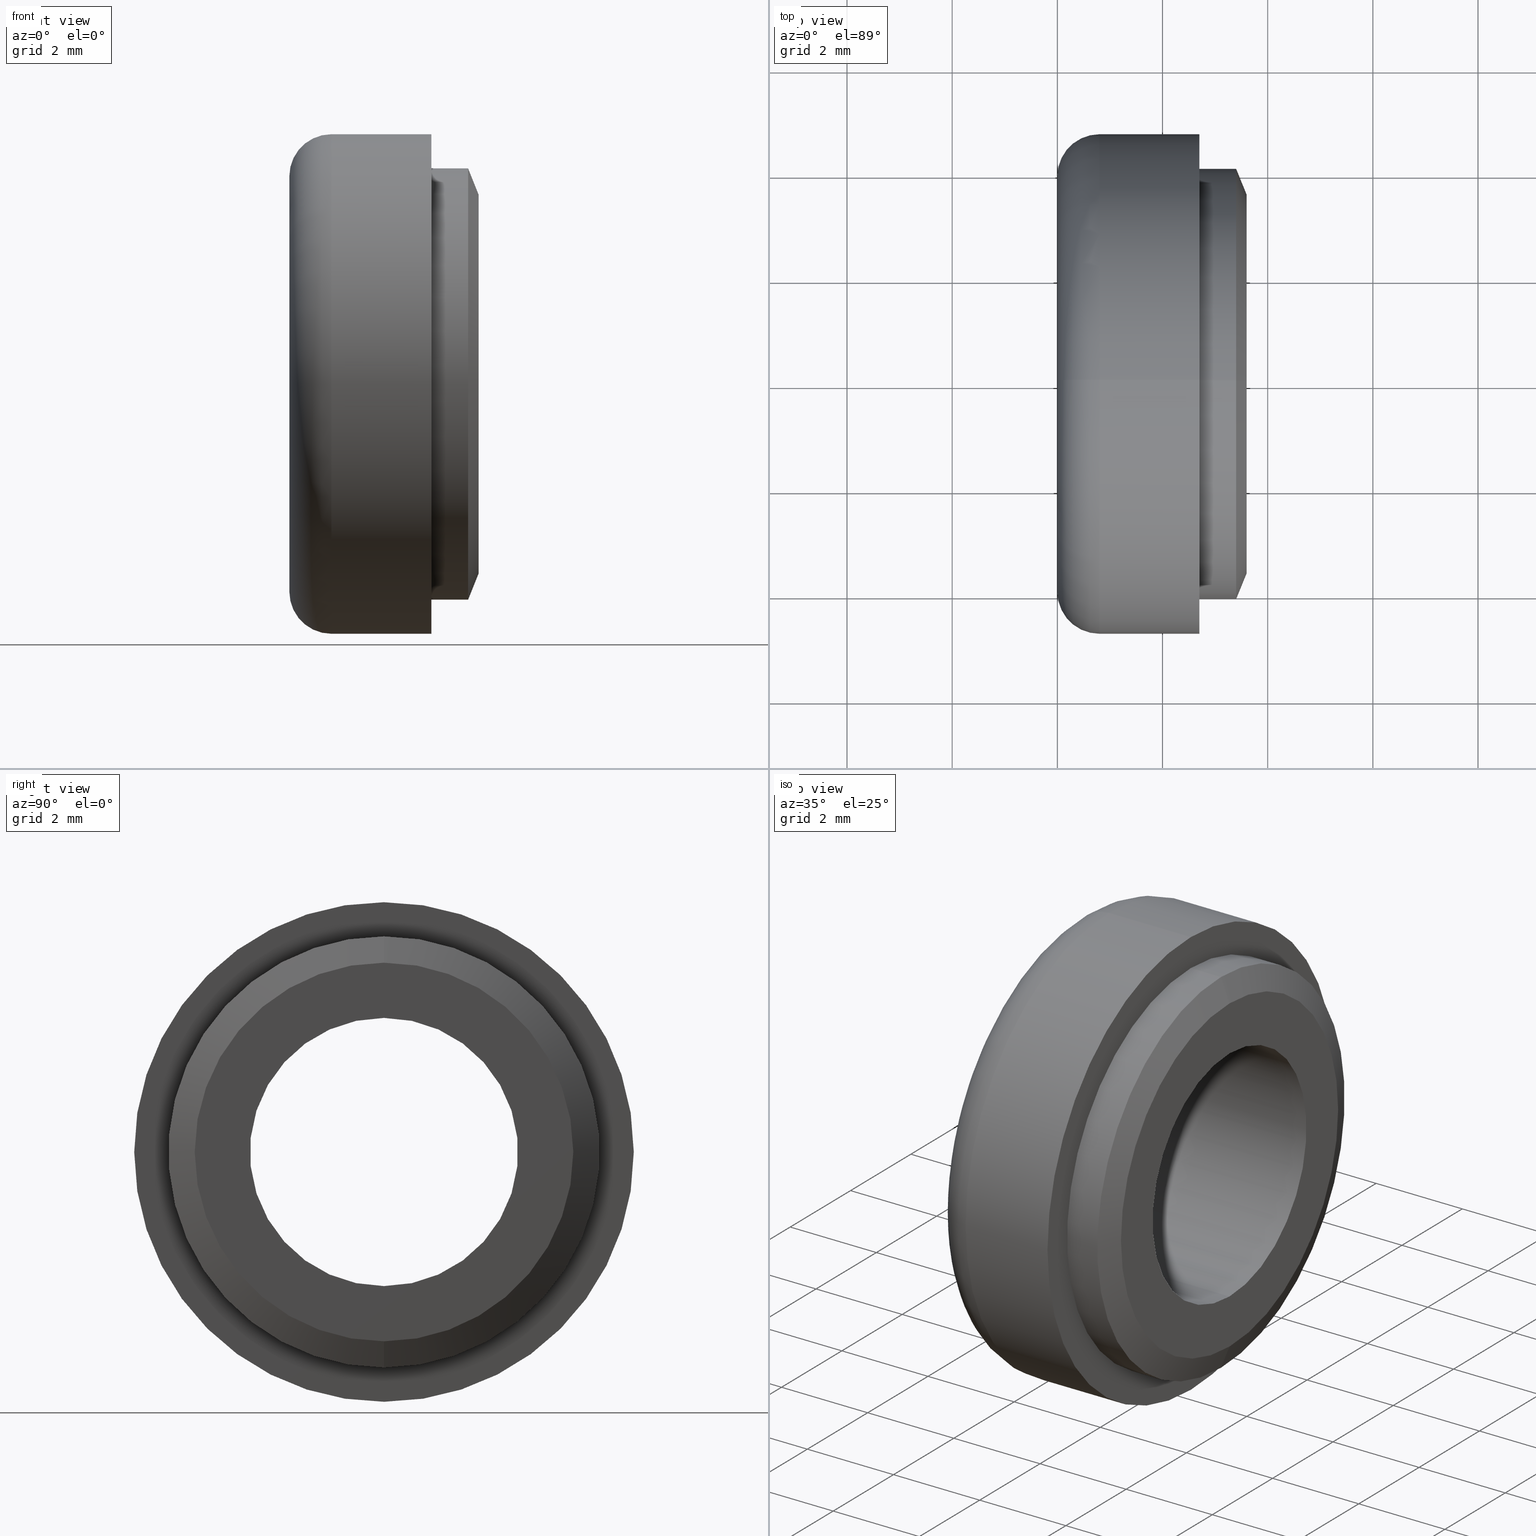
[diagram: canonical four-view strip — front | top / right | iso, engineering-drawing reading convention]
A machine part, canonical four-view strip (front | top / right | iso — engineering-drawing reading convention). The complete STEP part file that produces these views, byte-faithful:
ISO-10303-21;
HEADER;
FILE_DESCRIPTION (( 'STEP AP214' ),
    '1' );
FILE_NAME ('TL_421_M5.STEP',
    '2016-01-25T00:47:01',
    ( '' ),
    ( '' ),
    'SwSTEP 2.0',
    'SolidWorks 2015',
    '' );
FILE_SCHEMA (( 'AUTOMOTIVE_DESIGN' ));
ENDSEC;

DATA;
#1 = ORIENTED_EDGE ( 'NONE', *, *, #694, .T. ) ;
#2 = APPLICATION_CONTEXT ( 'automotive_design' ) ;
#3 = AXIS2_PLACEMENT_3D ( 'NONE', #18, #626, #240 ) ;
#4 =( LENGTH_UNIT ( ) NAMED_UNIT ( * ) SI_UNIT ( .MILLI., .METRE. ) );
#5 = CONTEXT_DEPENDENT_SHAPE_REPRESENTATION ( #448, #50 ) ;
#6 = CARTESIAN_POINT ( 'NONE',  ( 2.700000000000000200, 0.0000000000000000000, 0.0000000000000000000 ) ) ;
#7 = EDGE_CURVE ( 'NONE', #450, #698, #583, .T. ) ;
#8 = CIRCLE ( 'NONE', #39, 3.949999999999999700 ) ;
#9 =( LENGTH_UNIT ( ) NAMED_UNIT ( * ) SI_UNIT ( .MILLI., .METRE. ) );
#10 = PRODUCT_DEFINITION_SHAPE ( 'NONE', 'NONE',  #48 ) ;
#11 = CARTESIAN_POINT ( 'NONE',  ( -88.98999999999999500, 4.837354856632044100E-016, -3.949999999999999700 ) ) ;
#12 = SURFACE_STYLE_USAGE ( .BOTH. , #404 ) ;
#13 = CARTESIAN_POINT ( 'NONE',  ( 1.899999999999999000, 0.0000000000000000000, 0.0000000000000000000 ) ) ;
#14 = VERTEX_POINT ( 'NONE', #104 ) ;
#15 =( LENGTH_UNIT ( ) NAMED_UNIT ( * ) SI_UNIT ( .MILLI., .METRE. ) );
#16 = CYLINDRICAL_SURFACE ( 'NONE', #634, 2.549999999999999800 ) ;
#17 = AXIS2_PLACEMENT_3D ( 'NONE', #425, #479, #150 ) ;
#18 = CARTESIAN_POINT ( 'NONE',  ( 0.0000000000000000000, 0.0000000000000000000, 0.0000000000000000000 ) ) ;
#19 = PLANE ( 'NONE',  #430 ) ;
#20 = FACE_OUTER_BOUND ( 'NONE', #603, .T. ) ;
#21 = DIRECTION ( 'NONE',  ( -1.000000000000000000, -0.0000000000000000000, -0.0000000000000000000 ) ) ;
#22 = ADVANCED_FACE ( 'NONE', ( #546, #417 ), #670, .F. ) ;
#23 = VERTEX_POINT ( 'NONE', #721 ) ;
#24 = CARTESIAN_POINT ( 'NONE',  ( 2.799999999999997200, 0.0000000000000000000, 0.0000000000000000000 ) ) ;
#25 = ORIENTED_EDGE ( 'NONE', *, *, #127, .F. ) ;
#26 = CARTESIAN_POINT ( 'NONE',  ( 2.799999999999997200, 0.0000000000000000000, 0.0000000000000000000 ) ) ;
#27 = VECTOR ( 'NONE', #576, 1000.000000000000000 ) ;
#28 = CARTESIAN_POINT ( 'NONE',  ( 0.7999999999999999300, 0.0000000000000000000, 0.0000000000000000000 ) ) ;
#29 = SHAPE_DEFINITION_REPRESENTATION ( #10, #618 ) ;
#30 = CARTESIAN_POINT ( 'NONE',  ( 2.700000000000000200, 5.817072295949926400E-016, -4.750000000000000000 ) ) ;
#31 = CARTESIAN_POINT ( 'NONE',  ( 0.7999999999999999300, 0.0000000000000000000, 0.0000000000000000000 ) ) ;
#32 = ORIENTED_EDGE ( 'NONE', *, *, #506, .T. ) ;
#33 = ORIENTED_EDGE ( 'NONE', *, *, #525, .T. ) ;
#34 = ADVANCED_FACE ( 'NONE', ( #551 ), #710, .T. ) ;
#35 = CARTESIAN_POINT ( 'NONE',  ( 2.700000000000000200, 0.0000000000000000000, 4.750000000000000000 ) ) ;
#36 = AXIS2_PLACEMENT_3D ( 'NONE', #162, #274, #602 ) ;
#37 = TOROIDAL_SURFACE ( 'NONE', #553, 3.949999999999999700, 0.8000000000000000400 ) ;
#38 = EDGE_LOOP ( 'NONE', ( #198, #54 ) ) ;
#39 = AXIS2_PLACEMENT_3D ( 'NONE', #28, #419, #88 ) ;
#40 = CARTESIAN_POINT ( 'NONE',  ( 0.0000000000000000000, 0.0000000000000000000, 0.0000000000000000000 ) ) ;
#41 = DIRECTION ( 'NONE',  ( -1.000000000000000000, -0.0000000000000000000, -0.0000000000000000000 ) ) ;
#42 = AXIS2_PLACEMENT_3D ( 'NONE', #690, #67, #183 ) ;
#43 = DIRECTION ( 'NONE',  ( 0.0000000000000000000, 0.0000000000000000000, 1.000000000000000000 ) ) ;
#44 = ORIENTED_EDGE ( 'NONE', *, *, #503, .F. ) ;
#45 = ORIENTED_EDGE ( 'NONE', *, *, #444, .T. ) ;
#46 = FACE_OUTER_BOUND ( 'NONE', #677, .T. ) ;
#47 = DIRECTION ( 'NONE',  ( -1.000000000000000000, -0.0000000000000000000, -0.0000000000000000000 ) ) ;
#48 = PRODUCT_DEFINITION ( 'UNKNOWN', '', #278, #75 ) ;
#49 = CARTESIAN_POINT ( 'NONE',  ( 1.899999999999999000, 4.837354856632044100E-016, -3.949999999999999700 ) ) ;
#50 = PRODUCT_DEFINITION_SHAPE ( 'NONE', 'NONE',  #733 ) ;
#51 = EDGE_CURVE ( 'NONE', #211, #672, #277, .T. ) ;
#52 = EDGE_LOOP ( 'NONE', ( #32, #60 ) ) ;
#53 = VECTOR ( 'NONE', #302, 1000.000000000000000 ) ;
#54 = ORIENTED_EDGE ( 'NONE', *, *, #318, .T. ) ;
#55 = VECTOR ( 'NONE', #47, 1000.000000000000000 ) ;
#56 = CARTESIAN_POINT ( 'NONE',  ( -88.98999999999999500, 0.0000000000000000000, 0.0000000000000000000 ) ) ;
#57 = AXIS2_PLACEMENT_3D ( 'NONE', #94, #215, #534 ) ;
#58 = MANIFOLD_SOLID_BREP ( '��]1', #518 ) ;
#59 =( NAMED_UNIT ( * ) SI_UNIT ( $, .STERADIAN. ) SOLID_ANGLE_UNIT ( ) );
#60 = ORIENTED_EDGE ( 'NONE', *, *, #420, .T. ) ;
#61 = ORIENTED_EDGE ( 'NONE', *, *, #76, .T. ) ;
#62 = AXIS2_PLACEMENT_3D ( 'NONE', #640, #21, #305 ) ;
#63 = CIRCLE ( 'NONE', #496, 4.099999999999999600 ) ;
#64 = CARTESIAN_POINT ( 'NONE',  ( 2.700000000000000200, 0.0000000000000000000, 0.0000000000000000000 ) ) ;
#65 = APPLICATION_PROTOCOL_DEFINITION ( 'draft international standard', 'automotive_design', 1998, #121 ) ;
#66 = PRESENTATION_STYLE_ASSIGNMENT (( #12 ) ) ;
#67 = DIRECTION ( 'NONE',  ( 1.000000000000000000, 0.0000000000000000000, 0.0000000000000000000 ) ) ;
#68 = DIRECTION ( 'NONE',  ( 0.0000000000000000000, 0.0000000000000000000, 1.000000000000000000 ) ) ;
#69 = DIRECTION ( 'NONE',  ( -0.3713906763540910600, 0.0000000000000000000, 0.9284766908852645200 ) ) ;
#70 = ORIENTED_EDGE ( 'NONE', *, *, #420, .F. ) ;
#71 = SURFACE_SIDE_STYLE ('',( #117 ) ) ;
#72 = DIRECTION ( 'NONE',  ( 1.000000000000000000, 0.0000000000000000000, 0.0000000000000000000 ) ) ;
#73 = CIRCLE ( 'NONE', #727, 4.750000000000000000 ) ;
#74 = DIRECTION ( 'NONE',  ( 0.0000000000000000000, 0.0000000000000000000, 1.000000000000000000 ) ) ;
#75 = PRODUCT_DEFINITION_CONTEXT ( 'detailed design', #623, 'design' ) ;
#76 = EDGE_CURVE ( 'NONE', #467, #23, #490, .T. ) ;
#77 = VECTOR ( 'NONE', #217, 1000.000000000000000 ) ;
#78 = DIRECTION ( 'NONE',  ( 1.000000000000000000, 0.0000000000000000000, 0.0000000000000000000 ) ) ;
#79 = EDGE_CURVE ( 'NONE', #577, #216, #73, .T. ) ;
#80 = CARTESIAN_POINT ( 'NONE',  ( 0.7999999999999999300, 0.0000000000000000000, 3.949999999999999700 ) ) ;
#81 = AXIS2_PLACEMENT_3D ( 'NONE', #526, #207, #587 ) ;
#82 = DIRECTION ( 'NONE',  ( -1.000000000000000000, -0.0000000000000000000, -0.0000000000000000000 ) ) ;
#83 = DIRECTION ( 'NONE',  ( 0.0000000000000000000, 0.0000000000000000000, -1.000000000000000000 ) ) ;
#84 = EDGE_LOOP ( 'NONE', ( #268, #671, #112, #70 ) ) ;
#85 = FACE_OUTER_BOUND ( 'NONE', #442, .T. ) ;
#86 = DIRECTION ( 'NONE',  ( 0.0000000000000000000, 0.0000000000000000000, 1.000000000000000000 ) ) ;
#87 = ORIENTED_EDGE ( 'NONE', *, *, #7, .F. ) ;
#88 = DIRECTION ( 'NONE',  ( 0.0000000000000000000, 0.0000000000000000000, -1.000000000000000000 ) ) ;
#89 = PRODUCT_DEFINITION ( 'UNKNOWN', '', #351, #333 ) ;
#90 = EDGE_LOOP ( 'NONE', ( #681, #725, #87, #144 ) ) ;
#91 = EDGE_CURVE ( 'NONE', #23, #486, #655, .T. ) ;
#92 = CARTESIAN_POINT ( 'NONE',  ( 2.700000000000000200, 0.0000000000000000000, 0.0000000000000000000 ) ) ;
#93 = DIRECTION ( 'NONE',  ( 0.0000000000000000000, 0.0000000000000000000, -1.000000000000000000 ) ) ;
#94 = CARTESIAN_POINT ( 'NONE',  ( 2.799999999999997200, 0.0000000000000000000, 0.0000000000000000000 ) ) ;
#95 = DIRECTION ( 'NONE',  ( 0.0000000000000000000, 0.0000000000000000000, 1.000000000000000000 ) ) ;
#96 = FACE_OUTER_BOUND ( 'NONE', #380, .T. ) ;
#97 = AXIS2_PLACEMENT_3D ( 'NONE', #660, #499, #432 ) ;
#98 = VERTEX_POINT ( 'NONE', #325 ) ;
#99 = ORIENTED_EDGE ( 'NONE', *, *, #669, .F. ) ;
#100 = CARTESIAN_POINT ( 'NONE',  ( 0.7999999999999999300, 4.837354856632043100E-016, -3.949999999999999700 ) ) ;
#101 = CIRCLE ( 'NONE', #389, 2.600000000000000100 ) ;
#102 = CARTESIAN_POINT ( 'NONE',  ( 2.700000000000000200, 0.0000000000000000000, 0.0000000000000000000 ) ) ;
#103 = AXIS2_PLACEMENT_3D ( 'NONE', #252, #78, #406 ) ;
#104 = CARTESIAN_POINT ( 'NONE',  ( 0.7999999999999999300, 3.184081677783117700E-016, -2.600000000000000100 ) ) ;
#105 = ORIENTED_EDGE ( 'NONE', *, *, #200, .F. ) ;
#106 = ORIENTED_EDGE ( 'NONE', *, *, #588, .F. ) ;
#107 = ADVANCED_FACE ( 'NONE', ( #632, #214 ), #224, .F. ) ;
#108 = FACE_OUTER_BOUND ( 'NONE', #239, .T. ) ;
#109 = AXIS2_PLACEMENT_3D ( 'NONE', #26, #416, #86 ) ;
#110 = CARTESIAN_POINT ( 'NONE',  ( 0.7999999999999999300, 4.837354856632044100E-016, 3.949999999999999700 ) ) ;
#111 = AXIS2_PLACEMENT_3D ( 'NONE', #313, #708, #368 ) ;
#112 = ORIENTED_EDGE ( 'NONE', *, *, #127, .T. ) ;
#113 = ORIENTED_EDGE ( 'NONE', *, *, #51, .F. ) ;
#114 =( LENGTH_UNIT ( ) NAMED_UNIT ( * ) SI_UNIT ( .MILLI., .METRE. ) );
#115 = CIRCLE ( 'NONE', #253, 3.949999999999999700 ) ;
#116 = CARTESIAN_POINT ( 'NONE',  ( 0.7999999999999999300, 0.0000000000000000000, 0.0000000000000000000 ) ) ;
#117 = SURFACE_STYLE_FILL_AREA ( #456 ) ;
#118 = AXIS2_PLACEMENT_3D ( 'NONE', #363, #245, #565 ) ;
#119 = APPLICATION_PROTOCOL_DEFINITION ( 'draft international standard', 'automotive_design', 1998, #501 ) ;
#120 = CARTESIAN_POINT ( 'NONE',  ( -88.98999999999999500, 0.0000000000000000000, 0.0000000000000000000 ) ) ;
#121 = APPLICATION_CONTEXT ( 'automotive_design' ) ;
#122 = CARTESIAN_POINT ( 'NONE',  ( 2.700000000000000200, 0.0000000000000000000, 3.949999999999999700 ) ) ;
#123 = ORIENTED_EDGE ( 'NONE', *, *, #209, .F. ) ;
#124 = DIRECTION ( 'NONE',  ( 1.000000000000000000, 0.0000000000000000000, 0.0000000000000000000 ) ) ;
#125 = COLOUR_RGB ( '',0.7921568627450980000, 0.8196078431372548800, 0.9333333333333333500 ) ;
#126 = CARTESIAN_POINT ( 'NONE',  ( 1.899999999999999000, 5.021051876504147400E-016, -4.099999999999999600 ) ) ;
#127 = EDGE_CURVE ( 'NONE', #486, #228, #477, .T. ) ;
#128 = SHAPE_REPRESENTATION ( 'washer', ( #142 ), #641 ) ;
#129 = FILL_AREA_STYLE_COLOUR ( '', #271 ) ;
#130 = DIRECTION ( 'NONE',  ( 0.0000000000000000000, 0.0000000000000000000, -1.000000000000000000 ) ) ;
#131 = CIRCLE ( 'NONE', #231, 4.750000000000000000 ) ;
#132 = FILL_AREA_STYLE_COLOUR ( '', #367 ) ;
#133 = ORIENTED_EDGE ( 'NONE', *, *, #637, .F. ) ;
#134 = PLANE ( 'NONE',  #103 ) ;
#135 = AXIS2_PLACEMENT_3D ( 'NONE', #148, #529, #210 ) ;
#136 = DIRECTION ( 'NONE',  ( 1.000000000000000000, 0.0000000000000000000, 0.0000000000000000000 ) ) ;
#137 = CIRCLE ( 'NONE', #218, 3.949999999999999700 ) ;
#138 = CARTESIAN_POINT ( 'NONE',  ( 0.7999999999999999300, 0.0000000000000000000, 0.0000000000000000000 ) ) ;
#139 = ADVANCED_FACE ( 'NONE', ( #191 ), #37, .T. ) ;
#140 = SHAPE_REPRESENTATION ( 'TL_421_M5', ( #3, #586, #625 ), #666 ) ;
#141 = DIRECTION ( 'NONE',  ( -1.000000000000000000, -0.0000000000000000000, -0.0000000000000000000 ) ) ;
#142 = AXIS2_PLACEMENT_3D ( 'NONE', #571, #190, #510 ) ;
#143 = CARTESIAN_POINT ( 'NONE',  ( -88.98999999999999500, 3.122849337825750400E-016, -2.549999999999999800 ) ) ;
#144 = ORIENTED_EDGE ( 'NONE', *, *, #472, .F. ) ;
#145 = CONTEXT_DEPENDENT_SHAPE_REPRESENTATION ( #391, #412 ) ;
#146 = PRODUCT_DEFINITION_SHAPE ( 'NONE', 'NONE',  #166 ) ;
#147 = DIRECTION ( 'NONE',  ( -1.000000000000000000, -0.0000000000000000000, -0.0000000000000000000 ) ) ;
#148 = CARTESIAN_POINT ( 'NONE',  ( 0.0000000000000000000, 0.0000000000000000000, 0.0000000000000000000 ) ) ;
#149 = CONICAL_SURFACE ( 'NONE', #118, 3.600000000000000100, 1.190289949682545400 ) ;
#150 = DIRECTION ( 'NONE',  ( 0.0000000000000000000, 0.0000000000000000000, 1.000000000000000000 ) ) ;
#151 = ORIENTED_EDGE ( 'NONE', *, *, #273, .T. ) ;
#152 = CARTESIAN_POINT ( 'NONE',  ( 2.700000000000000200, 0.0000000000000000000, 0.0000000000000000000 ) ) ;
#153 = DIRECTION ( 'NONE',  ( -0.3713906763540910600, 1.137056007575565700E-016, -0.9284766908852645200 ) ) ;
#154 = CYLINDRICAL_SURFACE ( 'NONE', #714, 4.099999999999999600 ) ;
#155 = ORIENTED_EDGE ( 'NONE', *, *, #531, .F. ) ;
#156 = AXIS2_PLACEMENT_3D ( 'NONE', #473, #147, #528 ) ;
#157 = DIRECTION ( 'NONE',  ( -0.0000000000000000000, 0.0000000000000000000, 1.000000000000000000 ) ) ;
#158 = ADVANCED_FACE ( 'NONE', ( #462 ), #16, .F. ) ;
#159 = CIRCLE ( 'NONE', #680, 0.8000000000000003800 ) ;
#160 = DIRECTION ( 'NONE',  ( -1.000000000000000000, -0.0000000000000000000, -0.0000000000000000000 ) ) ;
#161 = AXIS2_PLACEMENT_3D ( 'NONE', #257, #306, #702 ) ;
#162 = CARTESIAN_POINT ( 'NONE',  ( 2.600000000000005000, 0.0000000000000000000, 0.0000000000000000000 ) ) ;
#163 = ORIENTED_EDGE ( 'NONE', *, *, #568, .T. ) ;
#164 = ORIENTED_EDGE ( 'NONE', *, *, #354, .T. ) ;
#165 = DIRECTION ( 'NONE',  ( 1.000000000000000000, 0.0000000000000000000, 0.0000000000000000000 ) ) ;
#166 = PRODUCT_DEFINITION ( 'UNKNOWN', '', #208, #455 ) ;
#167 = CYLINDRICAL_SURFACE ( 'NONE', #719, 2.549999999999999800 ) ;
#168 = FILL_AREA_STYLE_COLOUR ( '', #125 ) ;
#169 = CIRCLE ( 'NONE', #730, 4.099999999999999600 ) ;
#170 = EDGE_CURVE ( 'NONE', #23, #370, #322, .T. ) ;
#171 = EDGE_LOOP ( 'NONE', ( #291, #321, #326, #25 ) ) ;
#172 = ORIENTED_EDGE ( 'NONE', *, *, #504, .T. ) ;
#173 = FACE_OUTER_BOUND ( 'NONE', #171, .T. ) ;
#174 = DIRECTION ( 'NONE',  ( 0.0000000000000000000, 1.224646799147352000E-016, 1.000000000000000000 ) ) ;
#175 = AXIS2_PLACEMENT_3D ( 'NONE', #654, #712, #371 ) ;
#176 = SURFACE_SIDE_STYLE ('',( #548 ) ) ;
#177 = STYLED_ITEM ( 'NONE', ( #66 ), #491 ) ;
#178 = EDGE_LOOP ( 'NONE', ( #123, #44, #647, #449 ) ) ;
#179 = PRODUCT_CONTEXT ( 'NONE', #181, 'mechanical' ) ;
#180 = CARTESIAN_POINT ( 'NONE',  ( 0.7999999999999999300, 0.0000000000000000000, 2.600000000000000100 ) ) ;
#181 = APPLICATION_CONTEXT ( 'automotive_design' ) ;
#182 = SHAPE_DEFINITION_REPRESENTATION ( #146, #140 ) ;
#183 = DIRECTION ( 'NONE',  ( 0.0000000000000000000, 0.0000000000000000000, -1.000000000000000000 ) ) ;
#184 = CARTESIAN_POINT ( 'NONE',  ( 0.0000000000000000000, 0.0000000000000000000, 0.0000000000000000000 ) ) ;
#185 = CARTESIAN_POINT ( 'NONE',  ( 0.0000000000000000000, 5.327213576290986200E-016, 3.949999999999999700 ) ) ;
#186 = UNCERTAINTY_MEASURE_WITH_UNIT (LENGTH_MEASURE( 1.000000000000000100E-005 ), #4, 'distance_accuracy_value', 'NONE');
#187 =( NAMED_UNIT ( * ) SI_UNIT ( $, .STERADIAN. ) SOLID_ANGLE_UNIT ( ) );
#188 = ORIENTED_EDGE ( 'NONE', *, *, #266, .T. ) ;
#189 = VERTEX_POINT ( 'NONE', #49 ) ;
#190 = DIRECTION ( 'NONE',  ( 0.0000000000000000000, 0.0000000000000000000, 1.000000000000000000 ) ) ;
#191 = FACE_OUTER_BOUND ( 'NONE', #178, .T. ) ;
#192 = DIRECTION ( 'NONE',  ( -1.000000000000000000, -0.0000000000000000000, -0.0000000000000000000 ) ) ;
#193 = ADVANCED_FACE ( 'NONE', ( #173 ), #154, .T. ) ;
#194 =( NAMED_UNIT ( * ) PLANE_ANGLE_UNIT ( ) SI_UNIT ( $, .RADIAN. ) );
#195 = CARTESIAN_POINT ( 'NONE',  ( 0.0000000000000000000, 0.0000000000000000000, -3.949999999999999700 ) ) ;
#196 = AXIS2_PLACEMENT_3D ( 'NONE', #262, #653, #317 ) ;
#197 = DIRECTION ( 'NONE',  ( 0.0000000000000000000, -1.000000000000000000, 0.0000000000000000000 ) ) ;
#198 = ORIENTED_EDGE ( 'NONE', *, *, #200, .T. ) ;
#199 =( NAMED_UNIT ( * ) PLANE_ANGLE_UNIT ( ) SI_UNIT ( $, .RADIAN. ) );
#200 = EDGE_CURVE ( 'NONE', #436, #14, #299, .T. ) ;
#201 = ORIENTED_EDGE ( 'NONE', *, *, #409, .T. ) ;
#202 = ORIENTED_EDGE ( 'NONE', *, *, #694, .F. ) ;
#203 = AXIS2_PLACEMENT_3D ( 'NONE', #259, #646, #308 ) ;
#204 = FACE_BOUND ( 'NONE', #38, .T. ) ;
#205 = DIRECTION ( 'NONE',  ( -1.000000000000000000, -0.0000000000000000000, -0.0000000000000000000 ) ) ;
#206 = VERTEX_POINT ( 'NONE', #230 ) ;
#207 = DIRECTION ( 'NONE',  ( -1.000000000000000000, -0.0000000000000000000, -0.0000000000000000000 ) ) ;
#208 = PRODUCT_DEFINITION_FORMATION_WITH_SPECIFIED_SOURCE ( 'ANY', '', #530, .NOT_KNOWN. ) ;
#209 = EDGE_CURVE ( 'NONE', #282, #468, #598, .T. ) ;
#210 = DIRECTION ( 'NONE',  ( 0.0000000000000000000, 0.0000000000000000000, -1.000000000000000000 ) ) ;
#211 = VERTEX_POINT ( 'NONE', #724 ) ;
#212 = ORIENTED_EDGE ( 'NONE', *, *, #7, .T. ) ;
#213 = CARTESIAN_POINT ( 'NONE',  ( 1.899999999999999000, 0.0000000000000000000, 0.0000000000000000000 ) ) ;
#214 = FACE_OUTER_BOUND ( 'NONE', #498, .T. ) ;
#215 = DIRECTION ( 'NONE',  ( -1.000000000000000000, -0.0000000000000000000, -0.0000000000000000000 ) ) ;
#216 = VERTEX_POINT ( 'NONE', #728 ) ;
#217 = DIRECTION ( 'NONE',  ( -1.000000000000000000, -0.0000000000000000000, -0.0000000000000000000 ) ) ;
#218 = AXIS2_PLACEMENT_3D ( 'NONE', #357, #695, #635 ) ;
#219 = DIRECTION ( 'NONE',  ( 1.000000000000000000, 0.0000000000000000000, 0.0000000000000000000 ) ) ;
#220 = ORIENTED_EDGE ( 'NONE', *, *, #564, .F. ) ;
#221 = EDGE_LOOP ( 'NONE', ( #106, #643 ) ) ;
#222 = CIRCLE ( 'NONE', #617, 3.949999999999999700 ) ;
#223 = PRESENTATION_LAYER_ASSIGNMENT (  '', '', ( #177 ) ) ;
#224 = PLANE ( 'NONE',  #511 ) ;
#225 = SURFACE_STYLE_FILL_AREA ( #461 ) ;
#226 = ADVANCED_FACE ( 'NONE', ( #443 ), #283, .F. ) ;
#227 = EDGE_LOOP ( 'NONE', ( #652, #590 ) ) ;
#228 = VERTEX_POINT ( 'NONE', #288 ) ;
#229 = CYLINDRICAL_SURFACE ( 'NONE', #446, 3.949999999999999700 ) ;
#230 = CARTESIAN_POINT ( 'NONE',  ( 2.700000000000000200, 4.837354856632043100E-016, -3.949999999999999700 ) ) ;
#231 = AXIS2_PLACEMENT_3D ( 'NONE', #31, #423, #93 ) ;
#232 = DIRECTION ( 'NONE',  ( 0.0000000000000000000, 0.0000000000000000000, 1.000000000000000000 ) ) ;
#233 = ORIENTED_EDGE ( 'NONE', *, *, #246, .F. ) ;
#234 = ORIENTED_EDGE ( 'NONE', *, *, #627, .T. ) ;
#235 = VECTOR ( 'NONE', #69, 999.9999999999998900 ) ;
#236 = DIRECTION ( 'NONE',  ( 0.0000000000000000000, 0.0000000000000000000, 1.000000000000000000 ) ) ;
#237 = APPLICATION_PROTOCOL_DEFINITION ( 'draft international standard', 'automotive_design', 1998, #623 ) ;
#238 = CARTESIAN_POINT ( 'NONE',  ( 2.799999999999997200, 4.714890176717308500E-016, -3.600000000000000100 ) ) ;
#239 = EDGE_LOOP ( 'NONE', ( #362, #255, #686, #261 ) ) ;
#240 = DIRECTION ( 'NONE',  ( 1.000000000000000000, 0.0000000000000000000, 0.0000000000000000000 ) ) ;
#241 = CARTESIAN_POINT ( 'NONE',  ( -88.98999999999999500, 0.0000000000000000000, 3.949999999999999700 ) ) ;
#242 = PRODUCT_RELATED_PRODUCT_CATEGORY ( 'part', '', ( #530 ) ) ;
#243 = VERTEX_POINT ( 'NONE', #649 ) ;
#244 = DIRECTION ( 'NONE',  ( 0.0000000000000000000, 0.0000000000000000000, 1.000000000000000000 ) ) ;
#245 = DIRECTION ( 'NONE',  ( -1.000000000000000000, -0.0000000000000000000, -0.0000000000000000000 ) ) ;
#246 = EDGE_CURVE ( 'NONE', #98, #467, #429, .T. ) ;
#247 =( LENGTH_UNIT ( ) NAMED_UNIT ( * ) SI_UNIT ( .MILLI., .METRE. ) );
#248 = CARTESIAN_POINT ( 'NONE',  ( 2.700000000000000200, 0.0000000000000000000, 0.0000000000000000000 ) ) ;
#249 = TOROIDAL_SURFACE ( 'NONE', #303, 3.949999999999999700, 0.8000000000000000400 ) ;
#250 = ADVANCED_FACE ( 'NONE', ( #616 ), #270, .T. ) ;
#251 = UNCERTAINTY_MEASURE_WITH_UNIT (LENGTH_MEASURE( 1.000000000000000100E-005 ), #15, 'distance_accuracy_value', 'NONE');
#252 = CARTESIAN_POINT ( 'NONE',  ( 1.084202172485504400E-016, 3.949999999999999700, 0.0000000000000000000 ) ) ;
#253 = AXIS2_PLACEMENT_3D ( 'NONE', #515, #136, #463 ) ;
#254 = CARTESIAN_POINT ( 'NONE',  ( 0.0000000000000000000, 0.0000000000000000000, 0.0000000000000000000 ) ) ;
#255 = ORIENTED_EDGE ( 'NONE', *, *, #693, .T. ) ;
#256 = LINE ( 'NONE', #11, #521 ) ;
#257 = CARTESIAN_POINT ( 'NONE',  ( 2.700000000000000200, 0.0000000000000000000, 0.0000000000000000000 ) ) ;
#258 = SURFACE_STYLE_USAGE ( .BOTH. , #644 ) ;
#259 = CARTESIAN_POINT ( 'NONE',  ( 0.0000000000000000000, 0.0000000000000000000, 0.0000000000000000000 ) ) ;
#260 = MECHANICAL_DESIGN_GEOMETRIC_PRESENTATION_REPRESENTATION (  '', ( #177 ), #289 ) ;
#261 = ORIENTED_EDGE ( 'NONE', *, *, #610, .F. ) ;
#262 = CARTESIAN_POINT ( 'NONE',  ( 0.7999999999999999300, 0.0000000000000000000, 0.0000000000000000000 ) ) ;
#263 = DIRECTION ( 'NONE',  ( 0.0000000000000000000, 0.0000000000000000000, 1.000000000000000000 ) ) ;
#264 = PRESENTATION_STYLE_ASSIGNMENT (( #258 ) ) ;
#265 = CARTESIAN_POINT ( 'NONE',  ( 2.799999999999997200, 3.122849337825750400E-016, -2.549999999999999800 ) ) ;
#266 = EDGE_CURVE ( 'NONE', #662, #560, #554, .T. ) ;
#267 = ORIENTED_EDGE ( 'NONE', *, *, #437, .T. ) ;
#268 = ORIENTED_EDGE ( 'NONE', *, *, #170, .F. ) ;
#269 = AXIS2_PLACEMENT_3D ( 'NONE', #213, #593, #263 ) ;
#270 = CONICAL_SURFACE ( 'NONE', #17, 3.600000000000000100, 1.190289949682545400 ) ;
#271 = COLOUR_RGB ( '',0.7921568627450980000, 0.8196078431372548800, 0.9333333333333333500 ) ;
#272 = VECTOR ( 'NONE', #514, 1000.000000000000000 ) ;
#273 = EDGE_CURVE ( 'NONE', #672, #211, #575, .T. ) ;
#274 = DIRECTION ( 'NONE',  ( -1.000000000000000000, -0.0000000000000000000, -0.0000000000000000000 ) ) ;
#275 = DIRECTION ( 'NONE',  ( -1.000000000000000000, -0.0000000000000000000, -0.0000000000000000000 ) ) ;
#276 = ORIENTED_EDGE ( 'NONE', *, *, #382, .F. ) ;
#277 = CIRCLE ( 'NONE', #533, 2.549999999999999800 ) ;
#278 = PRODUCT_DEFINITION_FORMATION_WITH_SPECIFIED_SOURCE ( 'ANY', '', #474, .NOT_KNOWN. ) ;
#279 = ADVANCED_FACE ( 'NONE', ( #411 ), #700, .F. ) ;
#280 = EDGE_CURVE ( 'NONE', #310, #630, #115, .T. ) ;
#281 = CIRCLE ( 'NONE', #111, 4.099999999999999600 ) ;
#282 = VERTEX_POINT ( 'NONE', #185 ) ;
#283 = CYLINDRICAL_SURFACE ( 'NONE', #97, 3.949999999999999700 ) ;
#284 = AXIS2_PLACEMENT_3D ( 'NONE', #92, #421, #592 ) ;
#285 = ORIENTED_EDGE ( 'NONE', *, *, #280, .F. ) ;
#286 = DIRECTION ( 'NONE',  ( -1.000000000000000000, -0.0000000000000000000, -0.0000000000000000000 ) ) ;
#287 = CYLINDRICAL_SURFACE ( 'NONE', #62, 3.949999999999999700 ) ;
#288 = CARTESIAN_POINT ( 'NONE',  ( 1.899999999999999000, 0.0000000000000000000, 4.099999999999999600 ) ) ;
#289 =( GEOMETRIC_REPRESENTATION_CONTEXT ( 3 ) GLOBAL_UNCERTAINTY_ASSIGNED_CONTEXT ( ( #688 ) ) GLOBAL_UNIT_ASSIGNED_CONTEXT ( ( #355, #689, #297 ) ) REPRESENTATION_CONTEXT ( 'NONE', 'WORKASPACE' ) );
#290 = PRODUCT_CONTEXT ( 'NONE', #561, 'mechanical' ) ;
#291 = ORIENTED_EDGE ( 'NONE', *, *, #549, .T. ) ;
#292 = CARTESIAN_POINT ( 'NONE',  ( 0.7999999999999999300, 0.0000000000000000000, 4.750000000000000000 ) ) ;
#293 = ORIENTED_EDGE ( 'NONE', *, *, #209, .T. ) ;
#294 = DIRECTION ( 'NONE',  ( 0.0000000000000000000, 0.0000000000000000000, -1.000000000000000000 ) ) ;
#295 = ORIENTED_EDGE ( 'NONE', *, *, #280, .T. ) ;
#296 = CIRCLE ( 'NONE', #203, 3.949999999999999700 ) ;
#297 =( NAMED_UNIT ( * ) SI_UNIT ( $, .STERADIAN. ) SOLID_ANGLE_UNIT ( ) );
#298 = DIRECTION ( 'NONE',  ( 0.0000000000000000000, 0.0000000000000000000, -1.000000000000000000 ) ) ;
#299 = CIRCLE ( 'NONE', #675, 2.600000000000000100 ) ;
#300 = EDGE_CURVE ( 'NONE', #698, #450, #137, .T. ) ;
#301 = CARTESIAN_POINT ( 'NONE',  ( 2.700000000000000200, 4.837354856632043100E-016, -3.949999999999999700 ) ) ;
#302 = DIRECTION ( 'NONE',  ( -1.000000000000000000, -0.0000000000000000000, -0.0000000000000000000 ) ) ;
#303 = AXIS2_PLACEMENT_3D ( 'NONE', #372, #648, #478 ) ;
#304 = FACE_OUTER_BOUND ( 'NONE', #90, .T. ) ;
#305 = DIRECTION ( 'NONE',  ( 0.0000000000000000000, 0.0000000000000000000, 1.000000000000000000 ) ) ;
#306 = DIRECTION ( 'NONE',  ( 1.000000000000000000, 0.0000000000000000000, 0.0000000000000000000 ) ) ;
#307 = FILL_AREA_STYLE ('',( #451 ) ) ;
#308 = DIRECTION ( 'NONE',  ( 0.0000000000000000000, 0.0000000000000000000, -1.000000000000000000 ) ) ;
#309 = ORIENTED_EDGE ( 'NONE', *, *, #345, .F. ) ;
#310 = VERTEX_POINT ( 'NONE', #80 ) ;
#311 = EDGE_LOOP ( 'NONE', ( #233, #220 ) ) ;
#312 = ORIENTED_EDGE ( 'NONE', *, *, #409, .F. ) ;
#313 = CARTESIAN_POINT ( 'NONE',  ( 2.600000000000005000, 0.0000000000000000000, 0.0000000000000000000 ) ) ;
#314 = VERTEX_POINT ( 'NONE', #195 ) ;
#315 = PRODUCT_RELATED_PRODUCT_CATEGORY ( 'part', '', ( #474 ) ) ;
#316 = UNCERTAINTY_MEASURE_WITH_UNIT (LENGTH_MEASURE( 1.000000000000000100E-005 ), #9, 'distance_accuracy_value', 'NONE');
#317 = DIRECTION ( 'NONE',  ( 0.0000000000000000000, 0.0000000000000000000, -1.000000000000000000 ) ) ;
#318 = EDGE_CURVE ( 'NONE', #14, #436, #538, .T. ) ;
#319 = ORIENTED_EDGE ( 'NONE', *, *, #564, .T. ) ;
#320 = VERTEX_POINT ( 'NONE', #407 ) ;
#321 = ORIENTED_EDGE ( 'NONE', *, *, #170, .T. ) ;
#322 = LINE ( 'NONE', #434, #336 ) ;
#323 = UNCERTAINTY_MEASURE_WITH_UNIT (LENGTH_MEASURE( 1.000000000000000100E-005 ), #114, 'distance_accuracy_value', 'NONE');
#324 = AXIS2_PLACEMENT_3D ( 'NONE', #138, #465, #83 ) ;
#325 = CARTESIAN_POINT ( 'NONE',  ( 2.799999999999997200, 0.0000000000000000000, 3.600000000000000100 ) ) ;
#326 = ORIENTED_EDGE ( 'NONE', *, *, #506, .F. ) ;
#327 = ORIENTED_EDGE ( 'NONE', *, *, #349, .T. ) ;
#328 =( GEOMETRIC_REPRESENTATION_CONTEXT ( 3 ) GLOBAL_UNCERTAINTY_ASSIGNED_CONTEXT ( ( #651 ) ) GLOBAL_UNIT_ASSIGNED_CONTEXT ( ( #247, #567, #187 ) ) REPRESENTATION_CONTEXT ( 'NONE', 'WORKASPACE' ) );
#329 = LINE ( 'NONE', #122, #53 ) ;
#330 = DIRECTION ( 'NONE',  ( 1.000000000000000000, 0.0000000000000000000, 0.0000000000000000000 ) ) ;
#331 = DIRECTION ( 'NONE',  ( 0.0000000000000000000, 0.0000000000000000000, 1.000000000000000000 ) ) ;
#332 = DIRECTION ( 'NONE',  ( -1.000000000000000000, -0.0000000000000000000, -0.0000000000000000000 ) ) ;
#333 = PRODUCT_DEFINITION_CONTEXT ( 'detailed design', #501, 'design' ) ;
#334 = ORIENTED_EDGE ( 'NONE', *, *, #472, .T. ) ;
#335 = ORIENTED_EDGE ( 'NONE', *, *, #485, .F. ) ;
#336 = VECTOR ( 'NONE', #543, 1000.000000000000000 ) ;
#337 = DIRECTION ( 'NONE',  ( 0.0000000000000000000, 0.0000000000000000000, -1.000000000000000000 ) ) ;
#338 = ADVANCED_FACE ( 'NONE', ( #718, #390 ), #19, .F. ) ;
#339 = AXIS2_PLACEMENT_3D ( 'NONE', #24, #365, #705 ) ;
#340 = CARTESIAN_POINT ( 'NONE',  ( 2.799999999999997200, 4.408728476930471200E-016, -3.600000000000000100 ) ) ;
#341 = VERTEX_POINT ( 'NONE', #457 ) ;
#342 = ORIENTED_EDGE ( 'NONE', *, *, #300, .F. ) ;
#343 = DIRECTION ( 'NONE',  ( -1.000000000000000000, -0.0000000000000000000, -0.0000000000000000000 ) ) ;
#344 = FACE_OUTER_BOUND ( 'NONE', #516, .T. ) ;
#345 = EDGE_CURVE ( 'NONE', #189, #698, #256, .T. ) ;
#346 = APPLICATION_PROTOCOL_DEFINITION ( 'draft international standard', 'automotive_design', 1998, #2 ) ;
#347 = DIRECTION ( 'NONE',  ( 1.000000000000000000, 0.0000000000000000000, 0.0000000000000000000 ) ) ;
#348 =( NAMED_UNIT ( * ) PLANE_ANGLE_UNIT ( ) SI_UNIT ( $, .RADIAN. ) );
#349 = EDGE_CURVE ( 'NONE', #560, #662, #101, .T. ) ;
#350 = ORIENTED_EDGE ( 'NONE', *, *, #637, .T. ) ;
#351 = PRODUCT_DEFINITION_FORMATION_WITH_SPECIFIED_SOURCE ( 'ANY', '', #422, .NOT_KNOWN. ) ;
#352 =( NAMED_UNIT ( * ) PLANE_ANGLE_UNIT ( ) SI_UNIT ( $, .RADIAN. ) );
#353 = EDGE_LOOP ( 'NONE', ( #408, #33, #151, #723 ) ) ;
#354 = EDGE_CURVE ( 'NONE', #98, #486, #679, .T. ) ;
#355 =( LENGTH_UNIT ( ) NAMED_UNIT ( * ) SI_UNIT ( .MILLI., .METRE. ) );
#356 = VECTOR ( 'NONE', #153, 999.9999999999998900 ) ;
#357 = CARTESIAN_POINT ( 'NONE',  ( 0.0000000000000000000, 0.0000000000000000000, 0.0000000000000000000 ) ) ;
#358 = CYLINDRICAL_SURFACE ( 'NONE', #480, 2.600000000000000100 ) ;
#359 = CARTESIAN_POINT ( 'NONE',  ( 2.600000000000005000, 0.0000000000000000000, 4.099999999999999600 ) ) ;
#360 = ORIENTED_EDGE ( 'NONE', *, *, #382, .T. ) ;
#361 = ORIENTED_EDGE ( 'NONE', *, *, #91, .F. ) ;
#362 = ORIENTED_EDGE ( 'NONE', *, *, #79, .F. ) ;
#363 = CARTESIAN_POINT ( 'NONE',  ( 2.799999999999997200, 0.0000000000000000000, 0.0000000000000000000 ) ) ;
#364 = CYLINDRICAL_SURFACE ( 'NONE', #539, 4.099999999999999600 ) ;
#365 = DIRECTION ( 'NONE',  ( -1.000000000000000000, -0.0000000000000000000, -0.0000000000000000000 ) ) ;
#366 = STYLED_ITEM ( 'NONE', ( #703 ), #439 ) ;
#367 = COLOUR_RGB ( '',0.7921568627450980000, 0.8196078431372548800, 0.9333333333333333500 ) ;
#368 = DIRECTION ( 'NONE',  ( 0.0000000000000000000, 0.0000000000000000000, 1.000000000000000000 ) ) ;
#369 = ORIENTED_EDGE ( 'NONE', *, *, #709, .F. ) ;
#370 = VERTEX_POINT ( 'NONE', #126 ) ;
#371 = DIRECTION ( 'NONE',  ( 0.0000000000000000000, 0.0000000000000000000, 1.000000000000000000 ) ) ;
#372 = CARTESIAN_POINT ( 'NONE',  ( 0.7999999999999999300, 0.0000000000000000000, 0.0000000000000000000 ) ) ;
#373 = ORIENTED_EDGE ( 'NONE', *, *, #525, .F. ) ;
#374 = FACE_OUTER_BOUND ( 'NONE', #428, .T. ) ;
#375 = CARTESIAN_POINT ( 'NONE',  ( -88.98999999999999500, 0.0000000000000000000, 0.0000000000000000000 ) ) ;
#376 = DIRECTION ( 'NONE',  ( -1.000000000000000000, -0.0000000000000000000, -0.0000000000000000000 ) ) ;
#377 = AXIS2_PLACEMENT_3D ( 'NONE', #476, #532, #711 ) ;
#378 = EDGE_LOOP ( 'NONE', ( #373, #133, #234, #509 ) ) ;
#379 = ADVANCED_FACE ( 'NONE', ( #731 ), #364, .T. ) ;
#380 = EDGE_LOOP ( 'NONE', ( #595, #293, #729, #99 ) ) ;
#381 = LINE ( 'NONE', #392, #664 ) ;
#382 = EDGE_CURVE ( 'NONE', #436, #662, #381, .T. ) ;
#383 = ADVANCED_FACE ( 'NONE', ( #85 ), #484, .T. ) ;
#384 = CARTESIAN_POINT ( 'NONE',  ( -88.98999999999999500, 0.0000000000000000000, 0.0000000000000000000 ) ) ;
#385 = EDGE_LOOP ( 'NONE', ( #369, #45, #459, #155 ) ) ;
#386 = PRODUCT_RELATED_PRODUCT_CATEGORY ( 'part', '', ( #422 ) ) ;
#387 = AXIS2_PLACEMENT_3D ( 'NONE', #547, #332, #550 ) ;
#388 = CYLINDRICAL_SURFACE ( 'NONE', #377, 4.750000000000000000 ) ;
#389 = AXIS2_PLACEMENT_3D ( 'NONE', #254, #699, #130 ) ;
#390 = FACE_OUTER_BOUND ( 'NONE', #52, .T. ) ;
#391 =( REPRESENTATION_RELATIONSHIP ('NONE','NONE', #140, #618 ) REPRESENTATION_RELATIONSHIP_WITH_TRANSFORMATION ( #589 )SHAPE_REPRESENTATION_RELATIONSHIP( ) );
#392 = CARTESIAN_POINT ( 'NONE',  ( 2.700000000000000200, 0.0000000000000000000, 2.600000000000000100 ) ) ;
#393 = PRESENTATION_LAYER_ASSIGNMENT (  '', '', ( #366 ) ) ;
#394 = PRODUCT_CONTEXT ( 'NONE', #121, 'mechanical' ) ;
#395 = PLANE ( 'NONE',  #42 ) ;
#396 = EDGE_LOOP ( 'NONE', ( #188, #327 ) ) ;
#397 = DIRECTION ( 'NONE',  ( 1.000000000000000000, 0.0000000000000000000, 0.0000000000000000000 ) ) ;
#398 = EDGE_LOOP ( 'NONE', ( #309, #469, #334, #342 ) ) ;
#399 = DIRECTION ( 'NONE',  ( 1.000000000000000000, 0.0000000000000000000, 0.0000000000000000000 ) ) ;
#400 = PRESENTATION_STYLE_ASSIGNMENT (( #494 ) ) ;
#401 = SURFACE_STYLE_USAGE ( .BOTH. , #71 ) ;
#402 = DIRECTION ( 'NONE',  ( 0.0000000000000000000, 0.0000000000000000000, -1.000000000000000000 ) ) ;
#403 = CIRCLE ( 'NONE', #269, 3.949999999999999700 ) ;
#404 = SURFACE_SIDE_STYLE ('',( #225 ) ) ;
#405 = DIRECTION ( 'NONE',  ( -1.000000000000000000, -0.0000000000000000000, -0.0000000000000000000 ) ) ;
#406 = DIRECTION ( 'NONE',  ( 0.0000000000000000000, 0.0000000000000000000, -1.000000000000000000 ) ) ;
#407 = CARTESIAN_POINT ( 'NONE',  ( 0.7999999999999999300, 5.817072295949926400E-016, -4.750000000000000000 ) ) ;
#408 = ORIENTED_EDGE ( 'NONE', *, *, #504, .F. ) ;
#409 = EDGE_CURVE ( 'NONE', #216, #577, #645, .T. ) ;
#410 = CARTESIAN_POINT ( 'NONE',  ( 2.700000000000000200, 5.817072295949926400E-016, -4.750000000000000000 ) ) ;
#411 = FACE_OUTER_BOUND ( 'NONE', #642, .T. ) ;
#412 = PRODUCT_DEFINITION_SHAPE ( 'NONE', 'NONE',  #734 ) ;
#413 = STYLED_ITEM ( 'NONE', ( #264 ), #659 ) ;
#414 = CARTESIAN_POINT ( 'NONE',  ( 0.0000000000000000000, 3.122849337825750400E-016, -2.549999999999999800 ) ) ;
#415 = LINE ( 'NONE', #301, #272 ) ;
#416 = DIRECTION ( 'NONE',  ( -1.000000000000000000, -0.0000000000000000000, -0.0000000000000000000 ) ) ;
#417 = FACE_BOUND ( 'NONE', #611, .T. ) ;
#418 = ORIENTED_EDGE ( 'NONE', *, *, #693, .F. ) ;
#419 = DIRECTION ( 'NONE',  ( 1.000000000000000000, 0.0000000000000000000, 0.0000000000000000000 ) ) ;
#420 = EDGE_CURVE ( 'NONE', #370, #228, #63, .T. ) ;
#421 = DIRECTION ( 'NONE',  ( -1.000000000000000000, 0.0000000000000000000, 0.0000000000000000000 ) ) ;
#422 = PRODUCT ( 'washer', 'washer', '', ( #179 ) ) ;
#423 = DIRECTION ( 'NONE',  ( 1.000000000000000000, 0.0000000000000000000, 0.0000000000000000000 ) ) ;
#424 = CIRCLE ( 'NONE', #156, 3.600000000000000100 ) ;
#425 = CARTESIAN_POINT ( 'NONE',  ( 2.799999999999997200, 0.0000000000000000000, 0.0000000000000000000 ) ) ;
#426 = EDGE_CURVE ( 'NONE', #189, #475, #222, .T. ) ;
#427 = DIRECTION ( 'NONE',  ( -1.000000000000000000, -0.0000000000000000000, -0.0000000000000000000 ) ) ;
#428 = EDGE_LOOP ( 'NONE', ( #202, #105, #360, #497 ) ) ;
#429 = CIRCLE ( 'NONE', #57, 3.600000000000000100 ) ;
#430 = AXIS2_PLACEMENT_3D ( 'NONE', #629, #72, #402 ) ;
#431 = CARTESIAN_POINT ( 'NONE',  ( 0.0000000000000000000, 0.0000000000000000000, 2.600000000000000100 ) ) ;
#432 = DIRECTION ( 'NONE',  ( 0.0000000000000000000, 0.0000000000000000000, 1.000000000000000000 ) ) ;
#433 = LINE ( 'NONE', #697, #720 ) ;
#434 = CARTESIAN_POINT ( 'NONE',  ( -88.98999999999999500, 5.021051876504147400E-016, -4.099999999999999600 ) ) ;
#435 = MECHANICAL_DESIGN_GEOMETRIC_PRESENTATION_REPRESENTATION (  '', ( #366 ), #471 ) ;
#436 = VERTEX_POINT ( 'NONE', #180 ) ;
#437 = EDGE_CURVE ( 'NONE', #341, #206, #500, .T. ) ;
#438 = FACE_OUTER_BOUND ( 'NONE', #481, .T. ) ;
#439 = ADVANCED_BREP_SHAPE_REPRESENTATION ( '', ( #58, #142 ), #328 ) ;
#440 = ADVANCED_FACE ( 'NONE', ( #204, #344 ), #395, .T. ) ;
#441 = CIRCLE ( 'NONE', #109, 2.549999999999999800 ) ;
#442 = EDGE_LOOP ( 'NONE', ( #418, #312, #487, #163 ) ) ;
#443 = FACE_OUTER_BOUND ( 'NONE', #508, .T. ) ;
#444 = EDGE_CURVE ( 'NONE', #206, #341, #470, .T. ) ;
#445 =( NAMED_UNIT ( * ) PLANE_ANGLE_UNIT ( ) SI_UNIT ( $, .RADIAN. ) );
#446 = AXIS2_PLACEMENT_3D ( 'NONE', #152, #536, #95 ) ;
#447 = VECTOR ( 'NONE', #82, 1000.000000000000000 ) ;
#448 =( REPRESENTATION_RELATIONSHIP ('NONE','NONE', #140, #128 ) REPRESENTATION_RELATIONSHIP_WITH_TRANSFORMATION ( #453 )SHAPE_REPRESENTATION_RELATIONSHIP( ) );
#449 = ORIENTED_EDGE ( 'NONE', *, *, #568, .F. ) ;
#450 = VERTEX_POINT ( 'NONE', #562 ) ;
#451 = FILL_AREA_STYLE_COLOUR ( '', #674 ) ;
#452 = DIRECTION ( 'NONE',  ( 0.0000000000000000000, 0.0000000000000000000, -1.000000000000000000 ) ) ;
#453 = ITEM_DEFINED_TRANSFORMATION ( 'NONE', 'NONE', #586,  #142 ) ;
#454 = CARTESIAN_POINT ( 'NONE',  ( 0.8000000000000017100, 0.0000000000000000000, 0.0000000000000000000 ) ) ;
#455 = PRODUCT_DEFINITION_CONTEXT ( 'detailed design', #2, 'design' ) ;
#456 = FILL_AREA_STYLE ('',( #129 ) ) ;
#457 = CARTESIAN_POINT ( 'NONE',  ( 2.700000000000000200, 0.0000000000000000000, 3.949999999999999700 ) ) ;
#458 = STYLED_ITEM ( 'NONE', ( #400 ), #58 ) ;
#459 = ORIENTED_EDGE ( 'NONE', *, *, #485, .T. ) ;
#460 = ORIENTED_EDGE ( 'NONE', *, *, #549, .F. ) ;
#461 = FILL_AREA_STYLE ('',( #132 ) ) ;
#462 = FACE_OUTER_BOUND ( 'NONE', #353, .T. ) ;
#463 = DIRECTION ( 'NONE',  ( 0.0000000000000000000, 0.0000000000000000000, -1.000000000000000000 ) ) ;
#464 = AXIS2_PLACEMENT_3D ( 'NONE', #248, #631, #298 ) ;
#465 = DIRECTION ( 'NONE',  ( -1.000000000000000000, -0.0000000000000000000, -0.0000000000000000000 ) ) ;
#466 = DIRECTION ( 'NONE',  ( 0.0000000000000000000, 0.0000000000000000000, 1.000000000000000000 ) ) ;
#467 = VERTEX_POINT ( 'NONE', #238 ) ;
#468 = VERTEX_POINT ( 'NONE', #292 ) ;
#469 = ORIENTED_EDGE ( 'NONE', *, *, #426, .T. ) ;
#470 = CIRCLE ( 'NONE', #732, 3.949999999999999700 ) ;
#471 =( GEOMETRIC_REPRESENTATION_CONTEXT ( 3 ) GLOBAL_UNCERTAINTY_ASSIGNED_CONTEXT ( ( #316 ) ) GLOBAL_UNIT_ASSIGNED_CONTEXT ( ( #9, #352, #687 ) ) REPRESENTATION_CONTEXT ( 'NONE', 'WORKASPACE' ) );
#472 = EDGE_CURVE ( 'NONE', #475, #450, #622, .T. ) ;
#473 = CARTESIAN_POINT ( 'NONE',  ( 2.799999999999997200, 0.0000000000000000000, 0.0000000000000000000 ) ) ;
#474 = PRODUCT ( 'packing', 'packing', '', ( #290 ) ) ;
#475 = VERTEX_POINT ( 'NONE', #624 ) ;
#476 = CARTESIAN_POINT ( 'NONE',  ( 2.700000000000000200, 0.0000000000000000000, 0.0000000000000000000 ) ) ;
#477 = LINE ( 'NONE', #541, #55 ) ;
#478 = DIRECTION ( 'NONE',  ( 0.0000000000000000000, 0.0000000000000000000, -1.000000000000000000 ) ) ;
#479 = DIRECTION ( 'NONE',  ( -1.000000000000000000, -0.0000000000000000000, -0.0000000000000000000 ) ) ;
#480 = AXIS2_PLACEMENT_3D ( 'NONE', #657, #483, #43 ) ;
#481 = EDGE_LOOP ( 'NONE', ( #201, #707 ) ) ;
#482 = ORIENTED_EDGE ( 'NONE', *, *, #246, .T. ) ;
#483 = DIRECTION ( 'NONE',  ( -1.000000000000000000, 0.0000000000000000000, 0.0000000000000000000 ) ) ;
#484 = CYLINDRICAL_SURFACE ( 'NONE', #579, 4.750000000000000000 ) ;
#485 = EDGE_CURVE ( 'NONE', #341, #310, #329, .T. ) ;
#486 = VERTEX_POINT ( 'NONE', #359 ) ;
#487 = ORIENTED_EDGE ( 'NONE', *, *, #610, .T. ) ;
#488 = ADVANCED_FACE ( 'NONE', ( #605, #438 ), #580, .T. ) ;
#489 = AXIS2_PLACEMENT_3D ( 'NONE', #608, #599, #157 ) ;
#490 = LINE ( 'NONE', #340, #356 ) ;
#491 = ADVANCED_BREP_SHAPE_REPRESENTATION ( '', ( #659, #142 ), #641 ) ;
#492 = DIRECTION ( 'NONE',  ( 0.0000000000000000000, 1.000000000000000000, -1.224646799147353200E-016 ) ) ;
#493 = CIRCLE ( 'NONE', #339, 2.549999999999999800 ) ;
#494 = SURFACE_STYLE_USAGE ( .BOTH. , #176 ) ;
#495 = ADVANCED_FACE ( 'NONE', ( #46 ), #149, .T. ) ;
#496 = AXIS2_PLACEMENT_3D ( 'NONE', #13, #405, #74 ) ;
#497 = ORIENTED_EDGE ( 'NONE', *, *, #349, .F. ) ;
#498 = EDGE_LOOP ( 'NONE', ( #544, #621 ) ) ;
#499 = DIRECTION ( 'NONE',  ( -1.000000000000000000, -0.0000000000000000000, -0.0000000000000000000 ) ) ;
#500 = CIRCLE ( 'NONE', #663, 3.949999999999999700 ) ;
#501 = APPLICATION_CONTEXT ( 'automotive_design' ) ;
#502 = DIRECTION ( 'NONE',  ( 0.0000000000000000000, 0.0000000000000000000, 1.000000000000000000 ) ) ;
#503 = EDGE_CURVE ( 'NONE', #314, #282, #296, .T. ) ;
#504 = EDGE_CURVE ( 'NONE', #620, #243, #441, .T. ) ;
#505 = DIRECTION ( 'NONE',  ( 0.0000000000000000000, 0.0000000000000000000, 1.000000000000000000 ) ) ;
#506 = EDGE_CURVE ( 'NONE', #228, #370, #169, .T. ) ;
#507 = DIRECTION ( 'NONE',  ( 0.0000000000000000000, 0.0000000000000000000, 1.000000000000000000 ) ) ;
#508 = EDGE_LOOP ( 'NONE', ( #267, #584, #285, #335 ) ) ;
#509 = ORIENTED_EDGE ( 'NONE', *, *, #51, .T. ) ;
#510 = DIRECTION ( 'NONE',  ( 1.000000000000000000, 0.0000000000000000000, 0.0000000000000000000 ) ) ;
#511 = AXIS2_PLACEMENT_3D ( 'NONE', #40, #330, #665 ) ;
#512 = CARTESIAN_POINT ( 'NONE',  ( 1.899999999999999000, 0.0000000000000000000, 0.0000000000000000000 ) ) ;
#513 = FACE_OUTER_BOUND ( 'NONE', #385, .T. ) ;
#514 = DIRECTION ( 'NONE',  ( -1.000000000000000000, -0.0000000000000000000, -0.0000000000000000000 ) ) ;
#515 = CARTESIAN_POINT ( 'NONE',  ( 0.7999999999999999300, 0.0000000000000000000, 0.0000000000000000000 ) ) ;
#516 = EDGE_LOOP ( 'NONE', ( #295, #527 ) ) ;
#517 = DIRECTION ( 'NONE',  ( 0.0000000000000000000, 0.0000000000000000000, -1.000000000000000000 ) ) ;
#518 = CLOSED_SHELL ( 'NONE', ( #673, #193, #495, #158, #722, #667, #22, #250, #379, #338, #34 ) ) ;
#519 = DIRECTION ( 'NONE',  ( -1.000000000000000000, -0.0000000000000000000, -0.0000000000000000000 ) ) ;
#520 = PRESENTATION_LAYER_ASSIGNMENT (  '', '', ( #413 ) ) ;
#521 = VECTOR ( 'NONE', #519, 1000.000000000000000 ) ;
#522 =( NAMED_UNIT ( * ) SI_UNIT ( $, .STERADIAN. ) SOLID_ANGLE_UNIT ( ) );
#523 = EDGE_LOOP ( 'NONE', ( #650, #319, #164, #361 ) ) ;
#524 = CARTESIAN_POINT ( 'NONE',  ( 1.899999999999999000, 0.0000000000000000000, 0.0000000000000000000 ) ) ;
#525 = EDGE_CURVE ( 'NONE', #620, #672, #591, .T. ) ;
#526 = CARTESIAN_POINT ( 'NONE',  ( 0.0000000000000000000, 0.0000000000000000000, 0.0000000000000000000 ) ) ;
#527 = ORIENTED_EDGE ( 'NONE', *, *, #531, .T. ) ;
#528 = DIRECTION ( 'NONE',  ( 0.0000000000000000000, 0.0000000000000000000, 1.000000000000000000 ) ) ;
#529 = DIRECTION ( 'NONE',  ( 1.000000000000000000, 0.0000000000000000000, 0.0000000000000000000 ) ) ;
#530 = PRODUCT ( 'TL_421_M5', 'TL_421_M5', '', ( #394 ) ) ;
#531 = EDGE_CURVE ( 'NONE', #630, #310, #8, .T. ) ;
#532 = DIRECTION ( 'NONE',  ( -1.000000000000000000, -0.0000000000000000000, -0.0000000000000000000 ) ) ;
#533 = AXIS2_PLACEMENT_3D ( 'NONE', #678, #286, #232 ) ;
#534 = DIRECTION ( 'NONE',  ( 0.0000000000000000000, 0.0000000000000000000, 1.000000000000000000 ) ) ;
#535 = LINE ( 'NONE', #597, #77 ) ;
#536 = DIRECTION ( 'NONE',  ( -1.000000000000000000, -0.0000000000000000000, -0.0000000000000000000 ) ) ;
#537 = DIRECTION ( 'NONE',  ( 0.0000000000000000000, 0.0000000000000000000, -1.000000000000000000 ) ) ;
#538 = CIRCLE ( 'NONE', #324, 2.600000000000000100 ) ;
#539 = AXIS2_PLACEMENT_3D ( 'NONE', #120, #559, #507 ) ;
#540 = SHAPE_REPRESENTATION_RELATIONSHIP ( 'NONE' , 'NONE' ,  #128, #491 ) ;
#541 = CARTESIAN_POINT ( 'NONE',  ( -88.98999999999999500, 0.0000000000000000000, 4.099999999999999600 ) ) ;
#542 = AXIS2_PLACEMENT_3D ( 'NONE', #628, #244, #563 ) ;
#543 = DIRECTION ( 'NONE',  ( -1.000000000000000000, -0.0000000000000000000, -0.0000000000000000000 ) ) ;
#544 = ORIENTED_EDGE ( 'NONE', *, *, #503, .T. ) ;
#545 = EDGE_CURVE ( 'NONE', #282, #314, #726, .T. ) ;
#546 = FACE_OUTER_BOUND ( 'NONE', #311, .T. ) ;
#547 = CARTESIAN_POINT ( 'NONE',  ( 0.0000000000000000000, 0.0000000000000000000, 0.0000000000000000000 ) ) ;
#548 = SURFACE_STYLE_FILL_AREA ( #555 ) ;
#549 = EDGE_CURVE ( 'NONE', #486, #23, #281, .T. ) ;
#550 = DIRECTION ( 'NONE',  ( 0.0000000000000000000, 0.0000000000000000000, 1.000000000000000000 ) ) ;
#551 = FACE_OUTER_BOUND ( 'NONE', #398, .T. ) ;
#552 = LINE ( 'NONE', #35, #691 ) ;
#553 = AXIS2_PLACEMENT_3D ( 'NONE', #606, #165, #668 ) ;
#554 = CIRCLE ( 'NONE', #135, 2.600000000000000100 ) ;
#555 = FILL_AREA_STYLE ('',( #168 ) ) ;
#556 = MECHANICAL_DESIGN_GEOMETRIC_PRESENTATION_REPRESENTATION (  '', ( #413 ), #601 ) ;
#557 = FACE_BOUND ( 'NONE', #594, .T. ) ;
#558 = APPLICATION_PROTOCOL_DEFINITION ( 'draft international standard', 'automotive_design', 1998, #181 ) ;
#559 = DIRECTION ( 'NONE',  ( -1.000000000000000000, -0.0000000000000000000, -0.0000000000000000000 ) ) ;
#560 = VERTEX_POINT ( 'NONE', #706 ) ;
#561 = APPLICATION_CONTEXT ( 'automotive_design' ) ;
#562 = CARTESIAN_POINT ( 'NONE',  ( 0.0000000000000000000, 0.0000000000000000000, 3.949999999999999700 ) ) ;
#563 = DIRECTION ( 'NONE',  ( 1.000000000000000000, 0.0000000000000000000, 0.0000000000000000000 ) ) ;
#564 = EDGE_CURVE ( 'NONE', #467, #98, #424, .T. ) ;
#565 = DIRECTION ( 'NONE',  ( 0.0000000000000000000, 0.0000000000000000000, 1.000000000000000000 ) ) ;
#566 = VECTOR ( 'NONE', #141, 1000.000000000000000 ) ;
#567 =( NAMED_UNIT ( * ) PLANE_ANGLE_UNIT ( ) SI_UNIT ( $, .RADIAN. ) );
#568 = EDGE_CURVE ( 'NONE', #468, #320, #713, .T. ) ;
#569 = AXIS2_PLACEMENT_3D ( 'NONE', #375, #41, #717 ) ;
#570 = EDGE_CURVE ( 'NONE', #320, #468, #131, .T. ) ;
#571 = CARTESIAN_POINT ( 'NONE',  ( 0.0000000000000000000, 0.0000000000000000000, 0.0000000000000000000 ) ) ;
#572 = PRODUCT_DEFINITION_SHAPE ( 'NONE', 'NONE',  #89 ) ;
#573 = DIRECTION ( 'NONE',  ( 0.0000000000000000000, 0.0000000000000000000, 1.000000000000000000 ) ) ;
#574 = CARTESIAN_POINT ( 'NONE',  ( 0.0000000000000000000, 4.837354856632044100E-016, -3.949999999999999700 ) ) ;
#575 = CIRCLE ( 'NONE', #175, 2.549999999999999800 ) ;
#576 = DIRECTION ( 'NONE',  ( -1.000000000000000000, -0.0000000000000000000, -0.0000000000000000000 ) ) ;
#577 = VERTEX_POINT ( 'NONE', #30 ) ;
#578 = CARTESIAN_POINT ( 'NONE',  ( 0.7999999999999999300, 0.0000000000000000000, -3.949999999999999700 ) ) ;
#579 = AXIS2_PLACEMENT_3D ( 'NONE', #64, #343, #502 ) ;
#580 = PLANE ( 'NONE',  #161 ) ;
#581 = LINE ( 'NONE', #410, #447 ) ;
#582 =( LENGTH_UNIT ( ) NAMED_UNIT ( * ) SI_UNIT ( .MILLI., .METRE. ) );
#583 = CIRCLE ( 'NONE', #387, 3.949999999999999700 ) ;
#584 = ORIENTED_EDGE ( 'NONE', *, *, #709, .T. ) ;
#585 = DIRECTION ( 'NONE',  ( 0.0000000000000000000, 0.0000000000000000000, 1.000000000000000000 ) ) ;
#586 = AXIS2_PLACEMENT_3D ( 'NONE', #184, #505, #124 ) ;
#587 = DIRECTION ( 'NONE',  ( 0.0000000000000000000, 0.0000000000000000000, -1.000000000000000000 ) ) ;
#588 = EDGE_CURVE ( 'NONE', #475, #189, #403, .T. ) ;
#589 = ITEM_DEFINED_TRANSFORMATION ( 'NONE', 'NONE', #625,  #142 ) ;
#590 = ORIENTED_EDGE ( 'NONE', *, *, #444, .F. ) ;
#591 = LINE ( 'NONE', #143, #566 ) ;
#592 = DIRECTION ( 'NONE',  ( 0.0000000000000000000, 0.0000000000000000000, 1.000000000000000000 ) ) ;
#593 = DIRECTION ( 'NONE',  ( -1.000000000000000000, -0.0000000000000000000, -0.0000000000000000000 ) ) ;
#594 = EDGE_LOOP ( 'NONE', ( #113, #676 ) ) ;
#595 = ORIENTED_EDGE ( 'NONE', *, *, #545, .F. ) ;
#596 = AXIS2_PLACEMENT_3D ( 'NONE', #110, #492, #174 ) ;
#597 = CARTESIAN_POINT ( 'NONE',  ( -88.98999999999999500, 0.0000000000000000000, 2.549999999999999800 ) ) ;
#598 = CIRCLE ( 'NONE', #596, 0.8000000000000003800 ) ;
#599 = DIRECTION ( 'NONE',  ( -1.000000000000000000, 0.0000000000000000000, -0.0000000000000000000 ) ) ;
#600 = FACE_OUTER_BOUND ( 'NONE', #378, .T. ) ;
#601 =( GEOMETRIC_REPRESENTATION_CONTEXT ( 3 ) GLOBAL_UNCERTAINTY_ASSIGNED_CONTEXT ( ( #715 ) ) GLOBAL_UNIT_ASSIGNED_CONTEXT ( ( #582, #199, #522 ) ) REPRESENTATION_CONTEXT ( 'NONE', 'WORKASPACE' ) );
#602 = DIRECTION ( 'NONE',  ( 0.0000000000000000000, 0.0000000000000000000, 1.000000000000000000 ) ) ;
#603 = EDGE_LOOP ( 'NONE', ( #212, #716 ) ) ;
#604 = ORIENTED_EDGE ( 'NONE', *, *, #318, .F. ) ;
#605 = FACE_BOUND ( 'NONE', #227, .T. ) ;
#606 = CARTESIAN_POINT ( 'NONE',  ( 0.7999999999999999300, 0.0000000000000000000, 0.0000000000000000000 ) ) ;
#607 = SHAPE_DEFINITION_REPRESENTATION ( #572, #128 ) ;
#608 = CARTESIAN_POINT ( 'NONE',  ( 2.799999999999998500, 2.549999999999999800, 0.0000000000000000000 ) ) ;
#609 = ADVANCED_FACE ( 'NONE', ( #108 ), #388, .T. ) ;
#610 = EDGE_CURVE ( 'NONE', #216, #468, #552, .T. ) ;
#611 = EDGE_LOOP ( 'NONE', ( #350, #172 ) ) ;
#612 = CLOSED_SHELL ( 'NONE', ( #279, #613, #226, #609, #383, #488, #107, #619, #440, #139, #636 ) ) ;
#613 = ADVANCED_FACE ( 'NONE', ( #96 ), #249, .T. ) ;
#614 = PRESENTATION_LAYER_ASSIGNMENT (  '', '', ( #458 ) ) ;
#615 = DIRECTION ( 'NONE',  ( -1.000000000000000000, -0.0000000000000000000, -0.0000000000000000000 ) ) ;
#616 = FACE_OUTER_BOUND ( 'NONE', #523, .T. ) ;
#617 = AXIS2_PLACEMENT_3D ( 'NONE', #512, #192, #573 ) ;
#618 = SHAPE_REPRESENTATION ( 'packing', ( #142 ), #328 ) ;
#619 = ADVANCED_FACE ( 'NONE', ( #513 ), #229, .F. ) ;
#620 = VERTEX_POINT ( 'NONE', #265 ) ;
#621 = ORIENTED_EDGE ( 'NONE', *, *, #545, .T. ) ;
#622 = LINE ( 'NONE', #241, #27 ) ;
#623 = APPLICATION_CONTEXT ( 'automotive_design' ) ;
#624 = CARTESIAN_POINT ( 'NONE',  ( 1.899999999999999000, 0.0000000000000000000, 3.949999999999999700 ) ) ;
#625 = AXIS2_PLACEMENT_3D ( 'NONE', #454, #68, #397 ) ;
#626 = DIRECTION ( 'NONE',  ( 0.0000000000000000000, 0.0000000000000000000, 1.000000000000000000 ) ) ;
#627 = EDGE_CURVE ( 'NONE', #243, #211, #535, .T. ) ;
#628 = CARTESIAN_POINT ( 'NONE',  ( 0.0000000000000000000, 0.0000000000000000000, 0.0000000000000000000 ) ) ;
#629 = CARTESIAN_POINT ( 'NONE',  ( 1.899999999999999900, 4.099999999999999600, 0.0000000000000000000 ) ) ;
#630 = VERTEX_POINT ( 'NONE', #100 ) ;
#631 = DIRECTION ( 'NONE',  ( 1.000000000000000000, 0.0000000000000000000, 0.0000000000000000000 ) ) ;
#632 = FACE_BOUND ( 'NONE', #396, .T. ) ;
#633 =( NAMED_UNIT ( * ) SI_UNIT ( $, .STERADIAN. ) SOLID_ANGLE_UNIT ( ) );
#634 = AXIS2_PLACEMENT_3D ( 'NONE', #56, #160, #236 ) ;
#635 = DIRECTION ( 'NONE',  ( 0.0000000000000000000, 0.0000000000000000000, 1.000000000000000000 ) ) ;
#636 = ADVANCED_FACE ( 'NONE', ( #374 ), #358, .F. ) ;
#637 = EDGE_CURVE ( 'NONE', #243, #620, #493, .T. ) ;
#638 = DIRECTION ( 'NONE',  ( -1.000000000000000000, 0.0000000000000000000, 0.0000000000000000000 ) ) ;
#639 = CARTESIAN_POINT ( 'NONE',  ( 2.799999999999997200, 0.0000000000000000000, 3.600000000000000100 ) ) ;
#640 = CARTESIAN_POINT ( 'NONE',  ( -88.98999999999999500, 0.0000000000000000000, 0.0000000000000000000 ) ) ;
#641 =( GEOMETRIC_REPRESENTATION_CONTEXT ( 3 ) GLOBAL_UNCERTAINTY_ASSIGNED_CONTEXT ( ( #251 ) ) GLOBAL_UNIT_ASSIGNED_CONTEXT ( ( #15, #194, #633 ) ) REPRESENTATION_CONTEXT ( 'NONE', 'WORKASPACE' ) );
#642 = EDGE_LOOP ( 'NONE', ( #604, #1, #661, #276 ) ) ;
#643 = ORIENTED_EDGE ( 'NONE', *, *, #426, .F. ) ;
#644 = SURFACE_SIDE_STYLE ('',( #658 ) ) ;
#645 = CIRCLE ( 'NONE', #464, 4.750000000000000000 ) ;
#646 = DIRECTION ( 'NONE',  ( -1.000000000000000000, -0.0000000000000000000, -0.0000000000000000000 ) ) ;
#647 = ORIENTED_EDGE ( 'NONE', *, *, #669, .T. ) ;
#648 = DIRECTION ( 'NONE',  ( 1.000000000000000000, 0.0000000000000000000, 0.0000000000000000000 ) ) ;
#649 = CARTESIAN_POINT ( 'NONE',  ( 2.799999999999997200, 0.0000000000000000000, 2.549999999999999800 ) ) ;
#650 = ORIENTED_EDGE ( 'NONE', *, *, #76, .F. ) ;
#651 = UNCERTAINTY_MEASURE_WITH_UNIT (LENGTH_MEASURE( 1.000000000000000100E-005 ), #247, 'distance_accuracy_value', 'NONE');
#652 = ORIENTED_EDGE ( 'NONE', *, *, #437, .F. ) ;
#653 = DIRECTION ( 'NONE',  ( 1.000000000000000000, 0.0000000000000000000, 0.0000000000000000000 ) ) ;
#654 = CARTESIAN_POINT ( 'NONE',  ( 0.0000000000000000000, 0.0000000000000000000, 0.0000000000000000000 ) ) ;
#655 = CIRCLE ( 'NONE', #36, 4.099999999999999600 ) ;
#656 = MECHANICAL_DESIGN_GEOMETRIC_PRESENTATION_REPRESENTATION (  '', ( #458 ), #692 ) ;
#657 = CARTESIAN_POINT ( 'NONE',  ( 2.700000000000000200, 0.0000000000000000000, 0.0000000000000000000 ) ) ;
#658 = SURFACE_STYLE_FILL_AREA ( #307 ) ;
#659 = MANIFOLD_SOLID_BREP ( '��� - �����o��1', #612 ) ;
#660 = CARTESIAN_POINT ( 'NONE',  ( 2.700000000000000200, 0.0000000000000000000, 0.0000000000000000000 ) ) ;
#661 = ORIENTED_EDGE ( 'NONE', *, *, #266, .F. ) ;
#662 = VERTEX_POINT ( 'NONE', #431 ) ;
#663 = AXIS2_PLACEMENT_3D ( 'NONE', #6, #399, #294 ) ;
#664 = VECTOR ( 'NONE', #682, 1000.000000000000000 ) ;
#665 = DIRECTION ( 'NONE',  ( 0.0000000000000000000, 0.0000000000000000000, -1.000000000000000000 ) ) ;
#666 =( GEOMETRIC_REPRESENTATION_CONTEXT ( 3 ) GLOBAL_UNCERTAINTY_ASSIGNED_CONTEXT ( ( #186 ) ) GLOBAL_UNIT_ASSIGNED_CONTEXT ( ( #4, #348, #685 ) ) REPRESENTATION_CONTEXT ( 'NONE', 'WORKASPACE' ) );
#667 = ADVANCED_FACE ( 'NONE', ( #600 ), #167, .F. ) ;
#668 = DIRECTION ( 'NONE',  ( 0.0000000000000000000, 0.0000000000000000000, -1.000000000000000000 ) ) ;
#669 = EDGE_CURVE ( 'NONE', #314, #320, #159, .T. ) ;
#670 = PLANE ( 'NONE',  #489 ) ;
#671 = ORIENTED_EDGE ( 'NONE', *, *, #91, .T. ) ;
#672 = VERTEX_POINT ( 'NONE', #414 ) ;
#673 = ADVANCED_FACE ( 'NONE', ( #304 ), #287, .T. ) ;
#674 = COLOUR_RGB ( '',0.7921568627450980000, 0.8196078431372548800, 0.9333333333333333500 ) ;
#675 = AXIS2_PLACEMENT_3D ( 'NONE', #116, #615, #337 ) ;
#676 = ORIENTED_EDGE ( 'NONE', *, *, #273, .F. ) ;
#677 = EDGE_LOOP ( 'NONE', ( #482, #61, #460, #696 ) ) ;
#678 = CARTESIAN_POINT ( 'NONE',  ( 0.0000000000000000000, 0.0000000000000000000, 0.0000000000000000000 ) ) ;
#679 = LINE ( 'NONE', #639, #235 ) ;
#680 = AXIS2_PLACEMENT_3D ( 'NONE', #578, #197, #517 ) ;
#681 = ORIENTED_EDGE ( 'NONE', *, *, #588, .T. ) ;
#682 = DIRECTION ( 'NONE',  ( -1.000000000000000000, 0.0000000000000000000, 0.0000000000000000000 ) ) ;
#683 = APPLICATION_PROTOCOL_DEFINITION ( 'draft international standard', 'automotive_design', 1998, #561 ) ;
#684 = CARTESIAN_POINT ( 'NONE',  ( 2.700000000000000200, 0.0000000000000000000, 0.0000000000000000000 ) ) ;
#685 =( NAMED_UNIT ( * ) SI_UNIT ( $, .STERADIAN. ) SOLID_ANGLE_UNIT ( ) );
#686 = ORIENTED_EDGE ( 'NONE', *, *, #570, .T. ) ;
#687 =( NAMED_UNIT ( * ) SI_UNIT ( $, .STERADIAN. ) SOLID_ANGLE_UNIT ( ) );
#688 = UNCERTAINTY_MEASURE_WITH_UNIT (LENGTH_MEASURE( 1.000000000000000100E-005 ), #355, 'distance_accuracy_value', 'NONE');
#689 =( NAMED_UNIT ( * ) PLANE_ANGLE_UNIT ( ) SI_UNIT ( $, .RADIAN. ) );
#690 = CARTESIAN_POINT ( 'NONE',  ( 0.8000000000000000400, 0.0000000000000000000, 0.0000000000000000000 ) ) ;
#691 = VECTOR ( 'NONE', #427, 1000.000000000000000 ) ;
#692 =( GEOMETRIC_REPRESENTATION_CONTEXT ( 3 ) GLOBAL_UNCERTAINTY_ASSIGNED_CONTEXT ( ( #323 ) ) GLOBAL_UNIT_ASSIGNED_CONTEXT ( ( #114, #445, #59 ) ) REPRESENTATION_CONTEXT ( 'NONE', 'WORKASPACE' ) );
#693 = EDGE_CURVE ( 'NONE', #577, #320, #581, .T. ) ;
#694 = EDGE_CURVE ( 'NONE', #14, #560, #433, .T. ) ;
#695 = DIRECTION ( 'NONE',  ( -1.000000000000000000, -0.0000000000000000000, -0.0000000000000000000 ) ) ;
#696 = ORIENTED_EDGE ( 'NONE', *, *, #354, .F. ) ;
#697 = CARTESIAN_POINT ( 'NONE',  ( 2.700000000000000200, 3.184081677783117700E-016, -2.600000000000000100 ) ) ;
#698 = VERTEX_POINT ( 'NONE', #574 ) ;
#699 = DIRECTION ( 'NONE',  ( 1.000000000000000000, 0.0000000000000000000, 0.0000000000000000000 ) ) ;
#700 = CYLINDRICAL_SURFACE ( 'NONE', #284, 2.600000000000000100 ) ;
#701 = CARTESIAN_POINT ( 'NONE',  ( -88.98999999999999500, 0.0000000000000000000, 0.0000000000000000000 ) ) ;
#702 = DIRECTION ( 'NONE',  ( 0.0000000000000000000, 0.0000000000000000000, -1.000000000000000000 ) ) ;
#703 = PRESENTATION_STYLE_ASSIGNMENT (( #401 ) ) ;
#704 = SHAPE_REPRESENTATION_RELATIONSHIP ( 'NONE' , 'NONE' ,  #618, #439 ) ;
#705 = DIRECTION ( 'NONE',  ( 0.0000000000000000000, 0.0000000000000000000, 1.000000000000000000 ) ) ;
#706 = CARTESIAN_POINT ( 'NONE',  ( 0.0000000000000000000, 3.184081677783117700E-016, -2.600000000000000100 ) ) ;
#707 = ORIENTED_EDGE ( 'NONE', *, *, #79, .T. ) ;
#708 = DIRECTION ( 'NONE',  ( -1.000000000000000000, -0.0000000000000000000, -0.0000000000000000000 ) ) ;
#709 = EDGE_CURVE ( 'NONE', #206, #630, #415, .T. ) ;
#710 = CYLINDRICAL_SURFACE ( 'NONE', #569, 3.949999999999999700 ) ;
#711 = DIRECTION ( 'NONE',  ( 0.0000000000000000000, 0.0000000000000000000, 1.000000000000000000 ) ) ;
#712 = DIRECTION ( 'NONE',  ( -1.000000000000000000, -0.0000000000000000000, -0.0000000000000000000 ) ) ;
#713 = CIRCLE ( 'NONE', #196, 4.750000000000000000 ) ;
#714 = AXIS2_PLACEMENT_3D ( 'NONE', #384, #275, #331 ) ;
#715 = UNCERTAINTY_MEASURE_WITH_UNIT (LENGTH_MEASURE( 1.000000000000000100E-005 ), #582, 'distance_accuracy_value', 'NONE');
#716 = ORIENTED_EDGE ( 'NONE', *, *, #300, .T. ) ;
#717 = DIRECTION ( 'NONE',  ( 0.0000000000000000000, 0.0000000000000000000, 1.000000000000000000 ) ) ;
#718 = FACE_BOUND ( 'NONE', #221, .T. ) ;
#719 = AXIS2_PLACEMENT_3D ( 'NONE', #701, #376, #466 ) ;
#720 = VECTOR ( 'NONE', #638, 1000.000000000000000 ) ;
#721 = CARTESIAN_POINT ( 'NONE',  ( 2.600000000000005000, 5.021051876504147400E-016, -4.099999999999999600 ) ) ;
#722 = ADVANCED_FACE ( 'NONE', ( #557, #20 ), #134, .F. ) ;
#723 = ORIENTED_EDGE ( 'NONE', *, *, #627, .F. ) ;
#724 = CARTESIAN_POINT ( 'NONE',  ( 0.0000000000000000000, 0.0000000000000000000, 2.549999999999999800 ) ) ;
#725 = ORIENTED_EDGE ( 'NONE', *, *, #345, .T. ) ;
#726 = CIRCLE ( 'NONE', #81, 3.949999999999999700 ) ;
#727 = AXIS2_PLACEMENT_3D ( 'NONE', #102, #219, #537 ) ;
#728 = CARTESIAN_POINT ( 'NONE',  ( 2.700000000000000200, 0.0000000000000000000, 4.750000000000000000 ) ) ;
#729 = ORIENTED_EDGE ( 'NONE', *, *, #570, .F. ) ;
#730 = AXIS2_PLACEMENT_3D ( 'NONE', #524, #205, #585 ) ;
#731 = FACE_OUTER_BOUND ( 'NONE', #84, .T. ) ;
#732 = AXIS2_PLACEMENT_3D ( 'NONE', #684, #347, #452 ) ;
#733 = NEXT_ASSEMBLY_USAGE_OCCURRENCE ( 'NAUO1', ' ', ' ', #166, #89, $ ) ;
#734 = NEXT_ASSEMBLY_USAGE_OCCURRENCE ( 'NAUO2', ' ', ' ', #166, #48, $ ) ;
ENDSEC;
END-ISO-10303-21;
